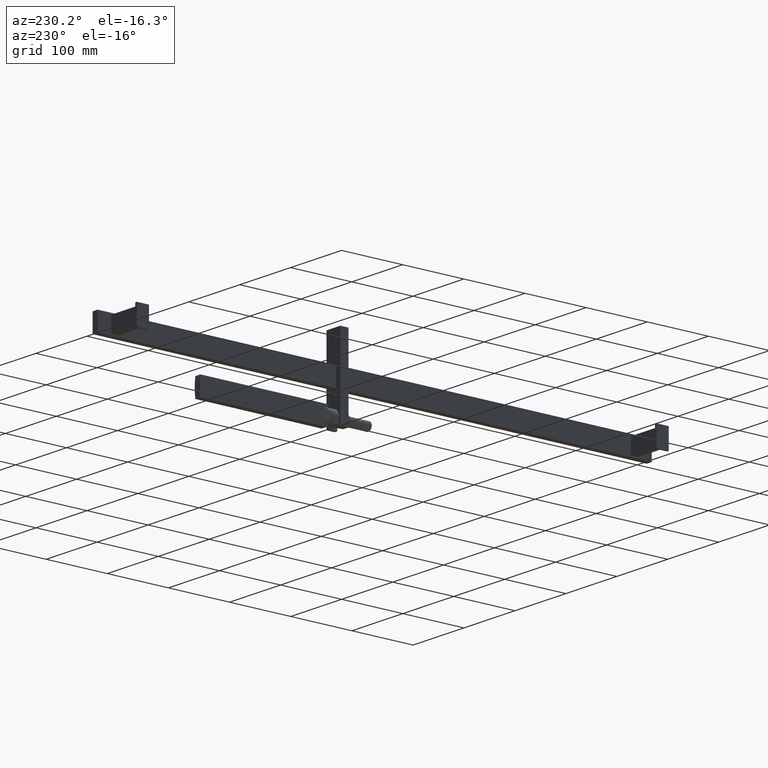
[diagram: clean part render]
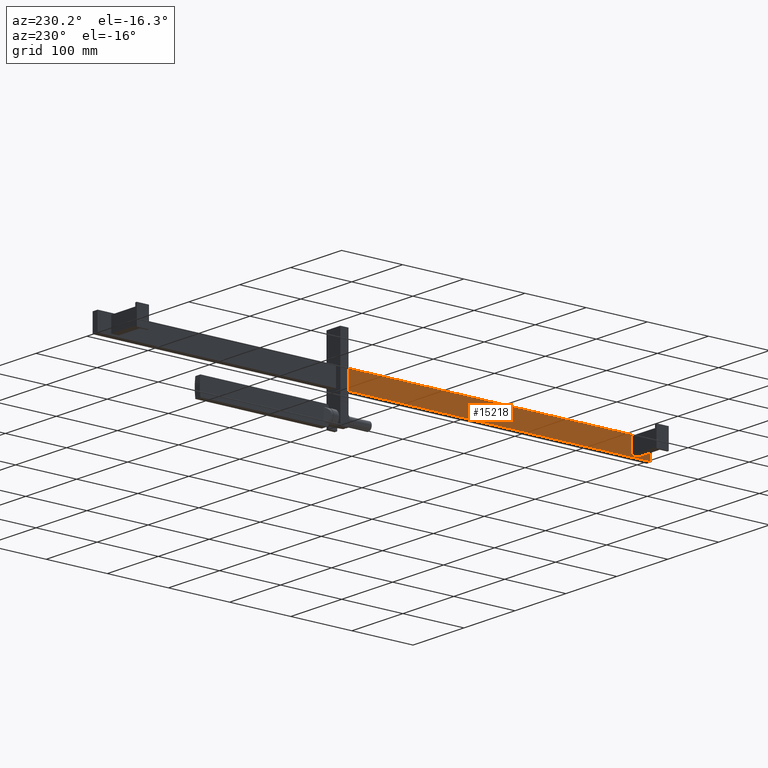
[diagram: same view with one face highlighted and labeled with its STEP entity id]
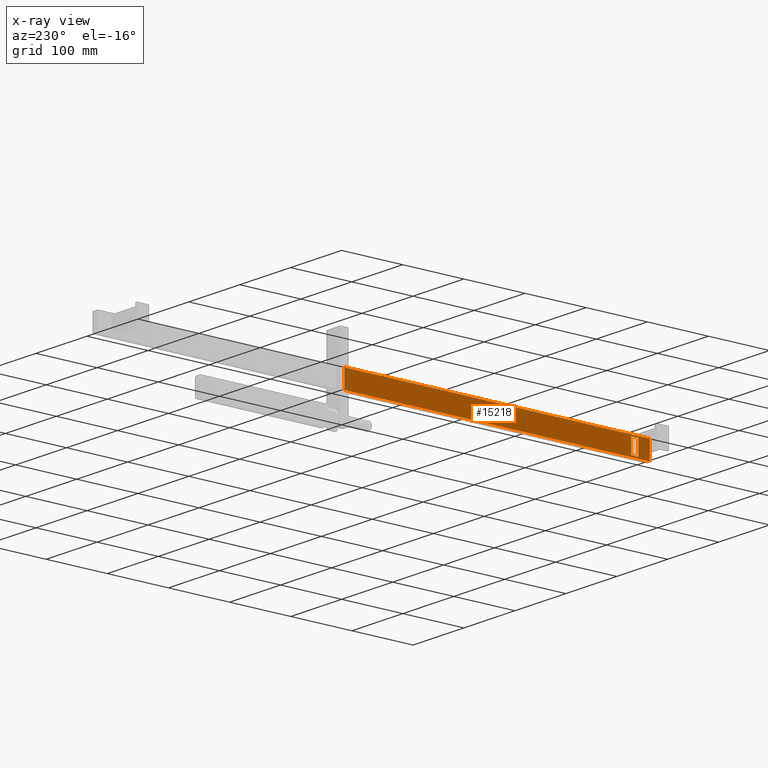
[diagram: x-ray of the same camera — body ghosted, the highlighted face saturated]
A machine part, auxiliary view. The second image highlights one B-rep face of the part: STEP entity #15218.
The next image is the same camera in x-ray: the body ghosted, the highlighted face saturated — about 0% of this face is hidden behind the body in this view.
In plain terms, the highlighted planar face has unit normal (-1, 0, 0).
Its self-contained STEP definition (entity closure, byte-faithful):
#186=DIRECTION('',(0.E0,0.E0,-1.E0));
#187=VECTOR('',#186,2.96E1);
#188=CARTESIAN_POINT('',(5.5E1,5.E1,1.48E1));
#189=LINE('',#188,#187);
#4249=DIRECTION('',(0.E0,-1.E0,0.E0));
#4250=VECTOR('',#4249,5.E2);
#4251=CARTESIAN_POINT('',(5.5E1,5.E1,-1.48E1));
#4252=LINE('',#4251,#4250);
#4257=DIRECTION('',(0.E0,0.E0,-1.E0));
#4258=VECTOR('',#4257,2.96E1);
#4259=CARTESIAN_POINT('',(5.5E1,-4.5E2,1.48E1));
#4260=LINE('',#4259,#4258);
#4265=DIRECTION('',(0.E0,1.E0,0.E0));
#4266=VECTOR('',#4265,5.E2);
#4267=CARTESIAN_POINT('',(5.5E1,-4.5E2,1.48E1));
#4268=LINE('',#4267,#4266);
#4529=DIRECTION('',(0.E0,-1.E0,0.E0));
#4530=VECTOR('',#4529,1.2E1);
#4531=CARTESIAN_POINT('',(5.5E1,-4.19E2,1.25E1));
#4532=LINE('',#4531,#4530);
#4537=DIRECTION('',(0.E0,0.E0,-1.E0));
#4538=VECTOR('',#4537,2.5E1);
#4539=CARTESIAN_POINT('',(5.5E1,-4.31E2,1.25E1));
#4540=LINE('',#4539,#4538);
#4549=DIRECTION('',(0.E0,1.E0,0.E0));
#4550=VECTOR('',#4549,1.2E1);
#4551=CARTESIAN_POINT('',(5.5E1,-4.31E2,-1.25E1));
#4552=LINE('',#4551,#4550);
#4557=DIRECTION('',(0.E0,0.E0,1.E0));
#4558=VECTOR('',#4557,2.5E1);
#4559=CARTESIAN_POINT('',(5.5E1,-4.19E2,-1.25E1));
#4560=LINE('',#4559,#4558);
#5233=CARTESIAN_POINT('',(5.5E1,5.E1,1.48E1));
#5234=CARTESIAN_POINT('',(5.5E1,5.E1,-1.48E1));
#5235=VERTEX_POINT('',#5233);
#5236=VERTEX_POINT('',#5234);
#5237=CARTESIAN_POINT('',(5.5E1,-4.5E2,1.48E1));
#5238=VERTEX_POINT('',#5237);
#5239=CARTESIAN_POINT('',(5.5E1,-4.5E2,-1.48E1));
#5240=VERTEX_POINT('',#5239);
#5241=CARTESIAN_POINT('',(5.5E1,-4.19E2,1.25E1));
#5242=CARTESIAN_POINT('',(5.5E1,-4.31E2,1.25E1));
#5243=VERTEX_POINT('',#5241);
#5244=VERTEX_POINT('',#5242);
#5245=CARTESIAN_POINT('',(5.5E1,-4.19E2,-1.25E1));
#5246=VERTEX_POINT('',#5245);
#5247=CARTESIAN_POINT('',(5.5E1,-4.31E2,-1.25E1));
#5248=VERTEX_POINT('',#5247);
#15195=CARTESIAN_POINT('',(5.5E1,4.5E2,-1.5E1));
#15196=DIRECTION('',(-1.E0,0.E0,0.E0));
#15197=DIRECTION('',(0.E0,-1.E0,0.E0));
#15198=AXIS2_PLACEMENT_3D('',#15195,#15196,#15197);
#15199=PLANE('',#15198);
#15200=ORIENTED_EDGE('',*,*,#7057,.F.);
#15202=ORIENTED_EDGE('',*,*,#15201,.F.);
#15204=ORIENTED_EDGE('',*,*,#15203,.T.);
#15205=ORIENTED_EDGE('',*,*,#15180,.F.);
#15206=EDGE_LOOP('',(#15200,#15202,#15204,#15205));
#15207=FACE_OUTER_BOUND('',#15206,.F.);
#15209=ORIENTED_EDGE('',*,*,#15208,.F.);
#15211=ORIENTED_EDGE('',*,*,#15210,.F.);
#15213=ORIENTED_EDGE('',*,*,#15212,.F.);
#15215=ORIENTED_EDGE('',*,*,#15214,.F.);
#15216=EDGE_LOOP('',(#15209,#15211,#15213,#15215));
#15217=FACE_BOUND('',#15216,.F.);
#15218=ADVANCED_FACE('',(#15207,#15217),#15199,.T.);
#7057=EDGE_CURVE('',#5235,#5236,#189,.T.);
#15180=EDGE_CURVE('',#5236,#5240,#4252,.T.);
#15201=EDGE_CURVE('',#5238,#5235,#4268,.T.);
#15203=EDGE_CURVE('',#5238,#5240,#4260,.T.);
#15208=EDGE_CURVE('',#5243,#5244,#4532,.T.);
#15210=EDGE_CURVE('',#5246,#5243,#4560,.T.);
#15212=EDGE_CURVE('',#5248,#5246,#4552,.T.);
#15214=EDGE_CURVE('',#5244,#5248,#4540,.T.);